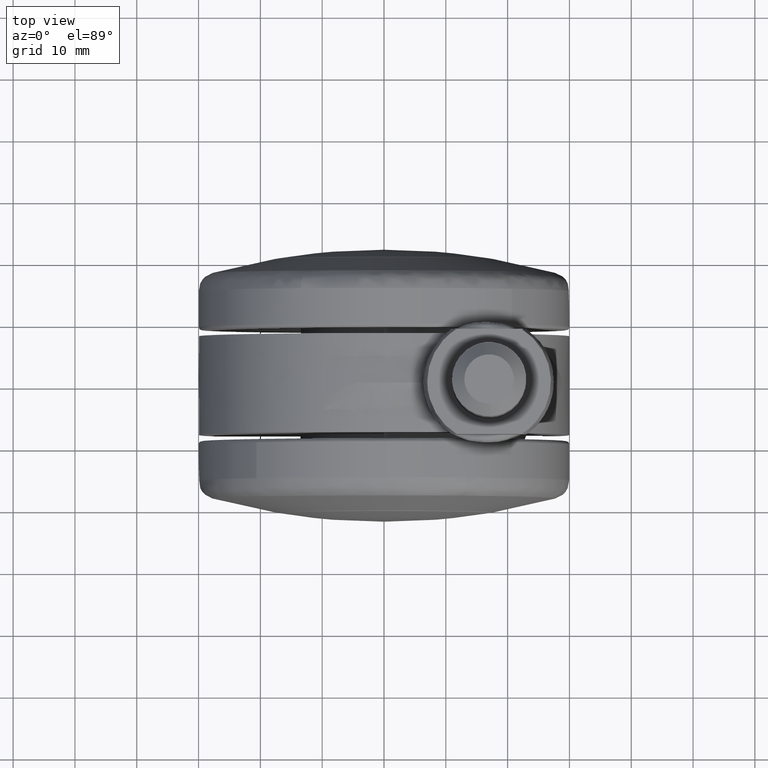
[diagram: clean part render]
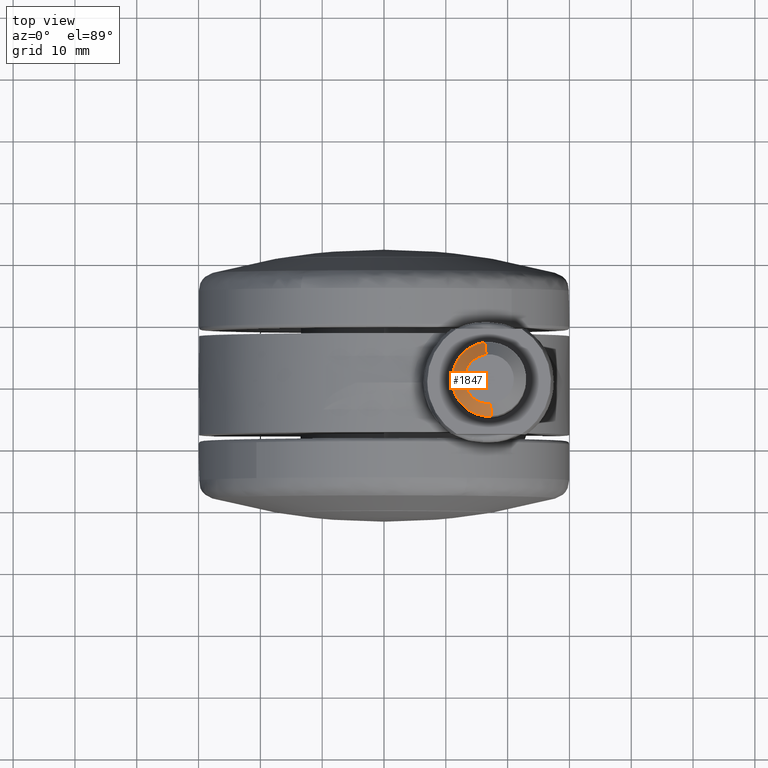
[diagram: same view with one face highlighted and labeled with its STEP entity id]
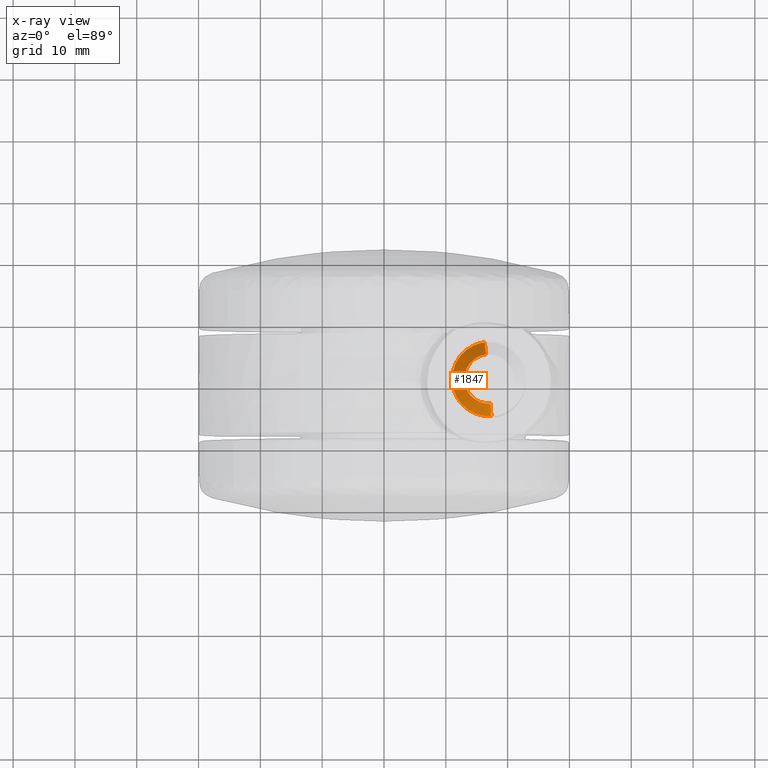
[diagram: x-ray of the same camera — body ghosted, the highlighted face saturated]
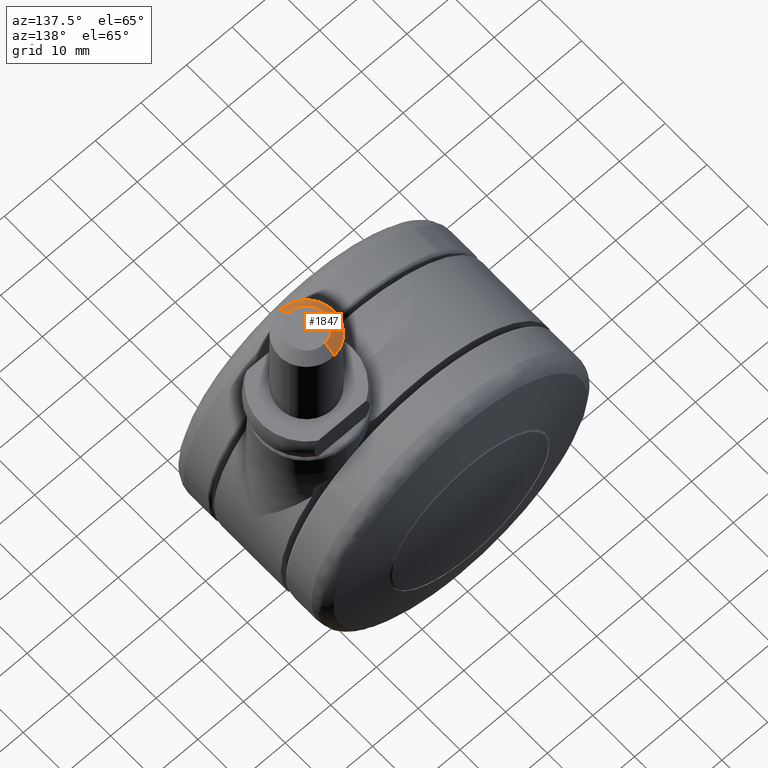
[diagram: same view with one face highlighted and labeled with its STEP entity id]
A machine part, top view. The second image highlights one B-rep face of the part: STEP entity #1847.
The next image is the same camera in x-ray: the body ghosted, the highlighted face saturated — about 0% of this face is hidden behind the body in this view.
A second angle (auxiliary view) of the same face is appended — the face is thin or edge-on in the first view.
In plain terms, the highlighted face is a freeform B-spline surface patch.
Its self-contained STEP definition (entity closure, byte-faithful):
#1555=CARTESIAN_POINT('',(17.366291237330049,-5.988808790539663,59.999999999968338));
#1556=VERTEX_POINT('',#1555);
#1637=CARTESIAN_POINT('',(16.291794592043392,5.958057158182110,59.999999999997982));
#1638=VERTEX_POINT('',#1637);
#1688=CARTESIAN_POINT('',(11.0,0.0,60.0));
#1689=VERTEX_POINT('',#1688);
#1690=CARTESIAN_POINT('',(17.366291237330056,-5.988808790539663,59.999999999968338));
#1691=CARTESIAN_POINT('',(17.183316580032098,-5.999999999999999,60.0));
#1692=CARTESIAN_POINT('',(17.0,-6.0,60.0));
#1693=CARTESIAN_POINT('',(11.000000000000002,-6.0,60.0));
#1694=CARTESIAN_POINT('',(11.0,0.0,60.0));
#1702=(BOUNDED_CURVE()B_SPLINE_CURVE(2,(#1690,#1691,#1692,#1693,#1694),.UNSPECIFIED.,.F.,.U.)B_SPLINE_CURVE_WITH_KNOTS((3,2,3),(0.739332962228145,0.750000000000000,1.0),.UNSPECIFIED.)CURVE()GEOMETRIC_REPRESENTATION_ITEM()RATIONAL_B_SPLINE_CURVE((0.976072041643576,0.987502787887187,1.0,0.707106781186548,1.0))REPRESENTATION_ITEM(''));
#1703=EDGE_CURVE('',#1556,#1689,#1702,.T.);
#1705=CARTESIAN_POINT('',(11.0,0.0,60.0));
#1706=CARTESIAN_POINT('',(11.0,5.329047155679706,60.000000000000007));
#1707=CARTESIAN_POINT('',(16.291794592043392,5.958057158182110,59.999999999997989));
#1715=(BOUNDED_CURVE()B_SPLINE_CURVE(2,(#1705,#1706,#1707),.UNSPECIFIED.,.F.,.U.)B_SPLINE_CURVE_WITH_KNOTS((3,3),(0.0,0.229562473514747),.UNSPECIFIED.)CURVE()GEOMETRIC_REPRESENTATION_ITEM()RATIONAL_B_SPLINE_CURVE((1.0,0.731050832853952,0.956026754186126))REPRESENTATION_ITEM(''));
#1716=EDGE_CURVE('',#1689,#1638,#1715,.T.);
#1744=CARTESIAN_POINT('',(16.527863060483149,3.972038105462119,61.999999999887557));
#1745=VERTEX_POINT('',#1744);
#1746=CARTESIAN_POINT('',(16.527863060483149,3.972038105462119,61.999999999887557));
#1747=CARTESIAN_POINT('',(16.291794592043392,5.958057158182110,59.999999999997982));
#1748=QUASI_UNIFORM_CURVE('',1,(#1746,#1747),.UNSPECIFIED.,.F.,.U.);
#1749=EDGE_CURVE('',#1745,#1638,#1748,.T.);
#1768=CARTESIAN_POINT('',(17.244194158991561,-3.992539193747434,61.999999999888118));
#1769=VERTEX_POINT('',#1768);
#1783=CARTESIAN_POINT('',(17.244194158991561,-3.992539193747434,61.999999999888118));
#1784=CARTESIAN_POINT('',(17.366291237330049,-5.988808790539663,59.999999999968338));
#1785=QUASI_UNIFORM_CURVE('',1,(#1783,#1784),.UNSPECIFIED.,.F.,.U.);
#1786=EDGE_CURVE('',#1769,#1556,#1785,.T.);
#1793=CARTESIAN_POINT('',(17.241141731162688,-3.942632453766356,62.050000000000011));
#1794=CARTESIAN_POINT('',(13.298509277396327,-4.183774184929040,62.050000000000004));
#1795=CARTESIAN_POINT('',(13.057367546233641,-0.241141731162684,62.050000000000011));
#1796=CARTESIAN_POINT('',(12.829644522906534,3.482096788816013,62.050000000000004));
#1797=CARTESIAN_POINT('',(16.533764773105808,3.922387629136464,62.050000000000011));
#1798=CARTESIAN_POINT('',(17.369419974860300,-6.039963198950325,59.948749999999990));
#1799=CARTESIAN_POINT('',(11.329456775909978,-6.409383173810628,59.948749999999976));
#1800=CARTESIAN_POINT('',(10.960036801049680,-0.369419974860304,59.948749999999990));
#1801=CARTESIAN_POINT('',(10.611173777022291,5.334440048942533,59.948749999999983));
#1802=CARTESIAN_POINT('',(16.285745337533292,6.008948896408141,59.948749999999997));
#1810=(BOUNDED_SURFACE()B_SPLINE_SURFACE(2,1,((#1793,#1798),(#1794,#1799),(#1795,#1800),(#1796,#1801),(#1797,#1802)),.UNSPECIFIED.,.F.,.F.,.U.)B_SPLINE_SURFACE_WITH_KNOTS((3,2,3),(2,2),(0.0,10.026039277240770,19.651036983391901),(0.0,2.971616247936500),.UNSPECIFIED.)GEOMETRIC_REPRESENTATION_ITEM()RATIONAL_B_SPLINE_SURFACE(((1.0,1.0),(0.707106781186548,0.707106781186548),(1.0,1.0),(0.718822509939086,0.718822509939086),(0.977505800795127,0.977505800795127)))REPRESENTATION_ITEM('')SURFACE());
#1811=ORIENTED_EDGE('',*,*,#1716,.F.);
#1812=ORIENTED_EDGE('',*,*,#1703,.F.);
#1813=ORIENTED_EDGE('',*,*,#1786,.F.);
#1814=CARTESIAN_POINT('',(13.0,0.0,62.0));
#1815=VERTEX_POINT('',#1814);
#1816=CARTESIAN_POINT('',(17.244194158991561,-3.992539193747434,61.999999999888118));
#1817=CARTESIAN_POINT('',(17.122211054042033,-4.000000000000000,62.0));
#1818=CARTESIAN_POINT('',(17.0,-4.0,62.0));
#1819=CARTESIAN_POINT('',(13.000000000000004,-4.000000000000000,62.000000000000007));
#1820=CARTESIAN_POINT('',(13.0,0.0,62.0));
#1828=(BOUNDED_CURVE()B_SPLINE_CURVE(2,(#1816,#1817,#1818,#1819,#1820),.UNSPECIFIED.,.F.,.U.)B_SPLINE_CURVE_WITH_KNOTS((3,2,3),(0.739332962168905,0.750000000000000,1.0),.UNSPECIFIED.)CURVE()GEOMETRIC_REPRESENTATION_ITEM()RATIONAL_B_SPLINE_CURVE((0.976072041516613,0.987502787817783,1.0,0.707106781186548,1.0))REPRESENTATION_ITEM(''));
#1829=EDGE_CURVE('',#1769,#1815,#1828,.T.);
#1830=ORIENTED_EDGE('',*,*,#1829,.T.);
#1831=CARTESIAN_POINT('',(13.0,0.0,62.0));
#1832=CARTESIAN_POINT('',(13.000000000000002,3.552698102226414,61.999999999999993));
#1833=CARTESIAN_POINT('',(16.527863060483146,3.972038105462119,61.999999999887571));
#1841=(BOUNDED_CURVE()B_SPLINE_CURVE(2,(#1831,#1832,#1833),.UNSPECIFIED.,.F.,.U.)B_SPLINE_CURVE_WITH_KNOTS((3,3),(0.0,0.229562473441053),.UNSPECIFIED.)CURVE()GEOMETRIC_REPRESENTATION_ITEM()RATIONAL_B_SPLINE_CURVE((1.0,0.731050832940289,0.956026754041684))REPRESENTATION_ITEM(''));
#1842=EDGE_CURVE('',#1815,#1745,#1841,.T.);
#1843=ORIENTED_EDGE('',*,*,#1842,.T.);
#1844=ORIENTED_EDGE('',*,*,#1749,.T.);
#1845=EDGE_LOOP('',(#1811,#1812,#1813,#1830,#1843,#1844));
#1846=FACE_OUTER_BOUND('',#1845,.T.);
#1847=ADVANCED_FACE('',(#1846),#1810,.T.);